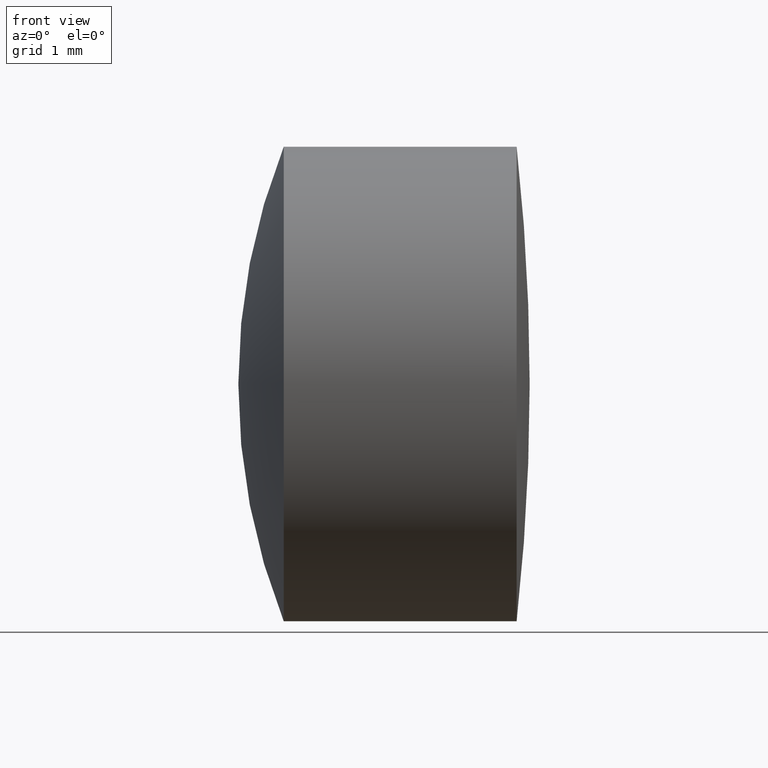
[diagram: clean part render]
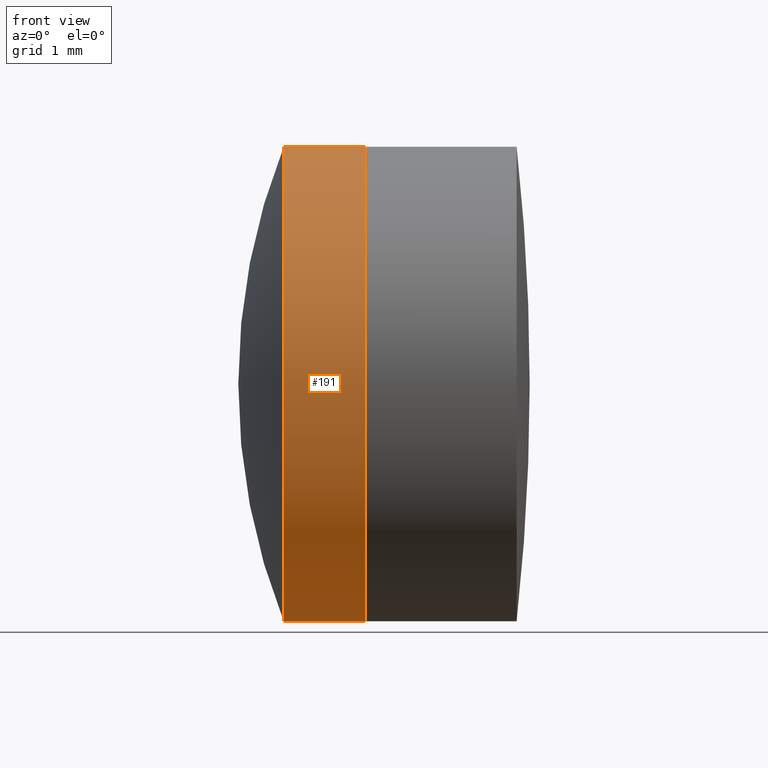
[diagram: same view with one face highlighted and labeled with its STEP entity id]
A machine part, front view. The second image highlights one B-rep face of the part: STEP entity #191.
In plain terms, the highlighted cylindrical surface (partial cylindrical patch) has radius 3.175 mm, axis along (-1, -0, -0).
Its self-contained STEP definition (entity closure, byte-faithful):
#11 = EDGE_CURVE ( 'NONE', #137, #195, #148, .T. ) ;
#14 = DIRECTION ( 'NONE',  ( -1.000000000000000000, -0.0000000000000000000, -0.0000000000000000000 ) ) ;
#17 = DIRECTION ( 'NONE',  ( -1.000000000000000000, -0.0000000000000000000, -0.0000000000000000000 ) ) ;
#21 = CARTESIAN_POINT ( 'NONE',  ( 261.6806597883319800, 3.888253587292846100E-016, -3.174999999999999800 ) ) ;
#28 = EDGE_LOOP ( 'NONE', ( #117, #61, #197, #187 ) ) ;
#46 = VERTEX_POINT ( 'NONE', #253 ) ;
#61 = ORIENTED_EDGE ( 'NONE', *, *, #11, .T. ) ;
#64 = VERTEX_POINT ( 'NONE', #124 ) ;
#80 = DIRECTION ( 'NONE',  ( -1.000000000000000000, -0.0000000000000000000, -0.0000000000000000000 ) ) ;
#83 = DIRECTION ( 'NONE',  ( 0.0000000000000000000, 0.0000000000000000000, 1.000000000000000000 ) ) ;
#101 = EDGE_CURVE ( 'NONE', #195, #46, #127, .T. ) ;
#117 = ORIENTED_EDGE ( 'NONE', *, *, #322, .F. ) ;
#124 = CARTESIAN_POINT ( 'NONE',  ( 260.5882553728641800, 0.0000000000000000000, -3.174999999999998500 ) ) ;
#127 = LINE ( 'NONE', #218, #166 ) ;
#130 = CARTESIAN_POINT ( 'NONE',  ( 124.5233095260452400, 0.0000000000000000000, 0.0000000000000000000 ) ) ;
#137 = VERTEX_POINT ( 'NONE', #21 ) ;
#148 = CIRCLE ( 'NONE', #271, 3.174999999999999800 ) ;
#151 = AXIS2_PLACEMENT_3D ( 'NONE', #130, #297, #83 ) ;
#153 = DIRECTION ( 'NONE',  ( -1.000000000000000000, -0.0000000000000000000, -0.0000000000000000000 ) ) ;
#166 = VECTOR ( 'NONE', #80, 1000.000000000000000 ) ;
#174 = DIRECTION ( 'NONE',  ( 0.0000000000000000000, 0.0000000000000000000, 1.000000000000000000 ) ) ;
#176 = DIRECTION ( 'NONE',  ( 0.0000000000000000000, 0.0000000000000000000, 1.000000000000000000 ) ) ;
#184 = VECTOR ( 'NONE', #153, 1000.000000000000000 ) ;
#187 = ORIENTED_EDGE ( 'NONE', *, *, #296, .F. ) ;
#191 = ADVANCED_FACE ( 'NONE', ( #257 ), #303, .T. ) ;
#192 = AXIS2_PLACEMENT_3D ( 'NONE', #206, #17, #176 ) ;
#195 = VERTEX_POINT ( 'NONE', #209 ) ;
#197 = ORIENTED_EDGE ( 'NONE', *, *, #101, .T. ) ;
#202 = CARTESIAN_POINT ( 'NONE',  ( 261.6806597883319800, 0.0000000000000000000, 0.0000000000000000000 ) ) ;
#203 = CARTESIAN_POINT ( 'NONE',  ( 124.5233095260452400, 3.888253587292846100E-016, -3.174999999999999800 ) ) ;
#206 = CARTESIAN_POINT ( 'NONE',  ( 260.5882553728641800, 0.0000000000000000000, 0.0000000000000000000 ) ) ;
#209 = CARTESIAN_POINT ( 'NONE',  ( 261.6806597883319800, 0.0000000000000000000, 3.174999999999999800 ) ) ;
#218 = CARTESIAN_POINT ( 'NONE',  ( 124.5233095260452400, 0.0000000000000000000, 3.174999999999999800 ) ) ;
#253 = CARTESIAN_POINT ( 'NONE',  ( 260.5882553728641800, -3.888253587292844600E-016, 3.174999999999998500 ) ) ;
#257 = FACE_OUTER_BOUND ( 'NONE', #28, .T. ) ;
#271 = AXIS2_PLACEMENT_3D ( 'NONE', #202, #14, #174 ) ;
#279 = CIRCLE ( 'NONE', #192, 3.174999999999999800 ) ;
#296 = EDGE_CURVE ( 'NONE', #64, #46, #279, .T. ) ;
#297 = DIRECTION ( 'NONE',  ( -1.000000000000000000, -0.0000000000000000000, -0.0000000000000000000 ) ) ;
#303 = CYLINDRICAL_SURFACE ( 'NONE', #151, 3.174999999999999800 ) ;
#322 = EDGE_CURVE ( 'NONE', #137, #64, #324, .T. ) ;
#324 = LINE ( 'NONE', #203, #184 ) ;